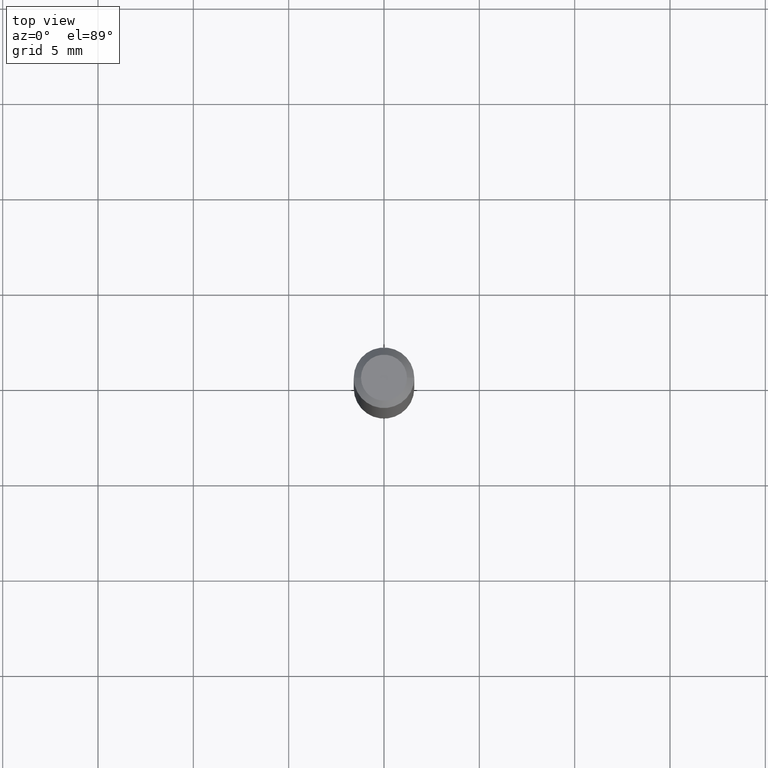
[diagram: clean part render]
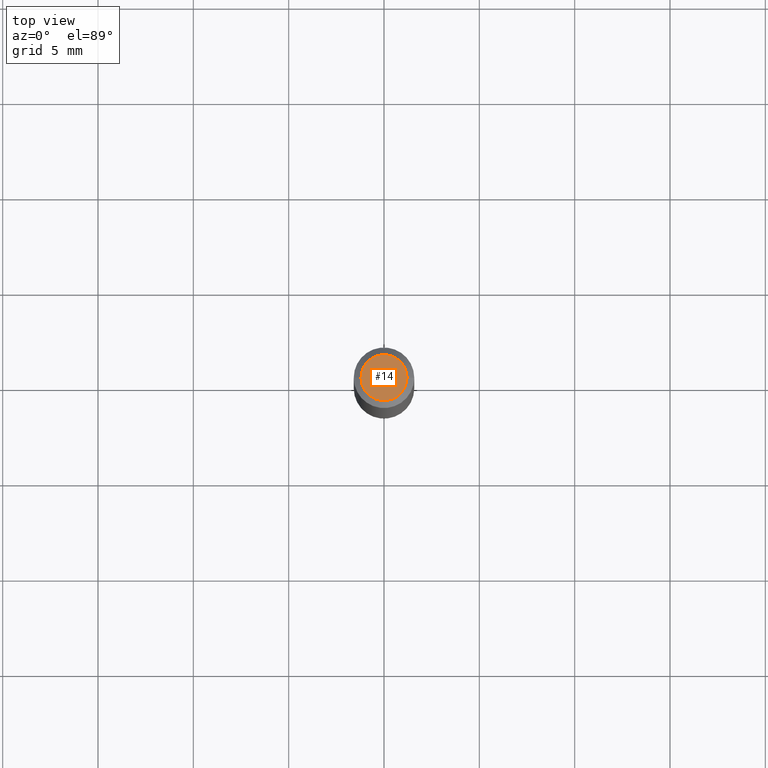
[diagram: same view with one face highlighted and labeled with its STEP entity id]
A machine part, top view. The second image highlights one B-rep face of the part: STEP entity #14.
In plain terms, the highlighted planar face has unit normal (0, -0, -1).
Its self-contained STEP definition (entity closure, byte-faithful):
#14 = ADVANCED_FACE ( 'NONE', ( #57 ), #342, .F. ) ;
#21 = CARTESIAN_POINT ( 'NONE',  ( -1.575719463841376315E-44, 2.249709785436367094E-30, 6.443424916547820620E-16 ) ) ;
#25 = EDGE_CURVE ( 'NONE', #352, #115, #403, .T. ) ;
#41 = ORIENTED_EDGE ( 'NONE', *, *, #422, .T. ) ;
#57 = FACE_OUTER_BOUND ( 'NONE', #295, .T. ) ;
#70 = CARTESIAN_POINT ( 'NONE',  ( 0.04749999999999999362, -4.035134999187566790E-16, 6.443424916547846258E-16 ) ) ;
#87 = DIRECTION ( 'NONE',  ( -2.445468806185136597E-29, 3.491481338843145583E-15, 1.000000000000000000 ) ) ;
#104 = DIRECTION ( 'NONE',  ( -2.445468806185136597E-29, 3.491481338843145583E-15, 1.000000000000000000 ) ) ;
#115 = VERTEX_POINT ( 'NONE', #70 ) ;
#142 = DIRECTION ( 'NONE',  ( 1.000000000000000000, -6.982962677686267499E-15, 4.852736867747366768E-29 ) ) ;
#166 = CARTESIAN_POINT ( 'NONE',  ( 3.316907271900976096E-16, 0.04749999999999999362, 1.563258822323416346E-16 ) ) ;
#199 = AXIS2_PLACEMENT_3D ( 'NONE', #354, #104, #142 ) ;
#210 = ORIENTED_EDGE ( 'NONE', *, *, #25, .T. ) ;
#246 = CARTESIAN_POINT ( 'NONE',  ( -0.04749999999999999362, 3.578768372314221846E-16, 6.443424916547796954E-16 ) ) ;
#276 = DIRECTION ( 'NONE',  ( 2.438088387897960049E-29, -3.491481338843145188E-15, -1.000000000000000000 ) ) ;
#280 = CIRCLE ( 'NONE', #313, 0.04749999999999999362 ) ;
#295 = EDGE_LOOP ( 'NONE', ( #210, #41 ) ) ;
#313 = AXIS2_PLACEMENT_3D ( 'NONE', #21, #87, #416 ) ;
#342 = PLANE ( 'NONE',  #364 ) ;
#352 = VERTEX_POINT ( 'NONE', #246 ) ;
#354 = CARTESIAN_POINT ( 'NONE',  ( -1.575719463841376315E-44, 2.249709785436367094E-30, 6.443424916547820620E-16 ) ) ;
#364 = AXIS2_PLACEMENT_3D ( 'NONE', #166, #276, #417 ) ;
#403 = CIRCLE ( 'NONE', #199, 0.04749999999999999362 ) ;
#416 = DIRECTION ( 'NONE',  ( 1.000000000000000000, -6.982962677686267499E-15, 4.852736867747366768E-29 ) ) ;
#417 = DIRECTION ( 'NONE',  ( -1.000000000000000000, 6.982962677686265922E-15, -4.876176775795935793E-29 ) ) ;
#422 = EDGE_CURVE ( 'NONE', #115, #352, #280, .T. ) ;